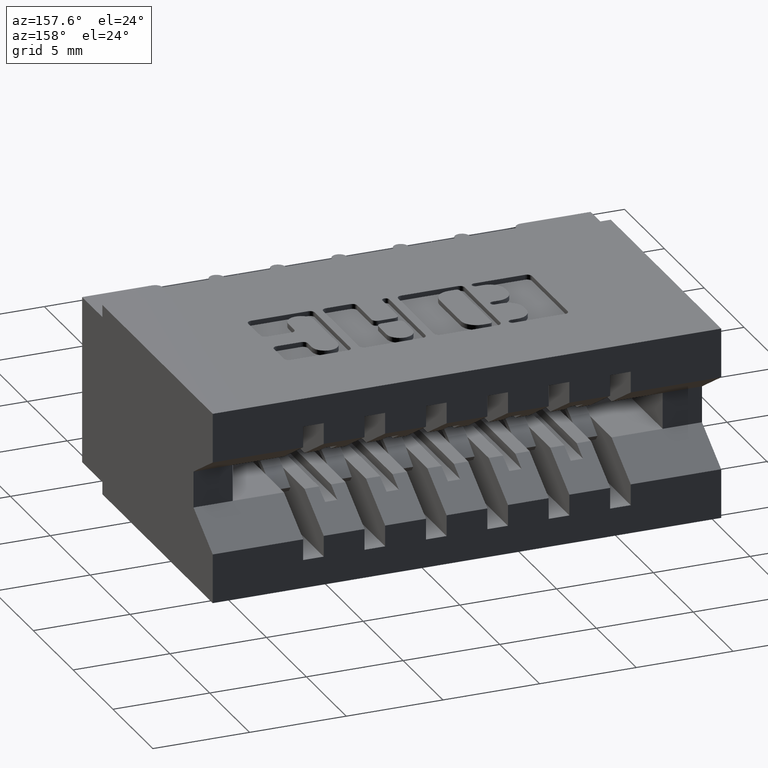
[diagram: clean part render]
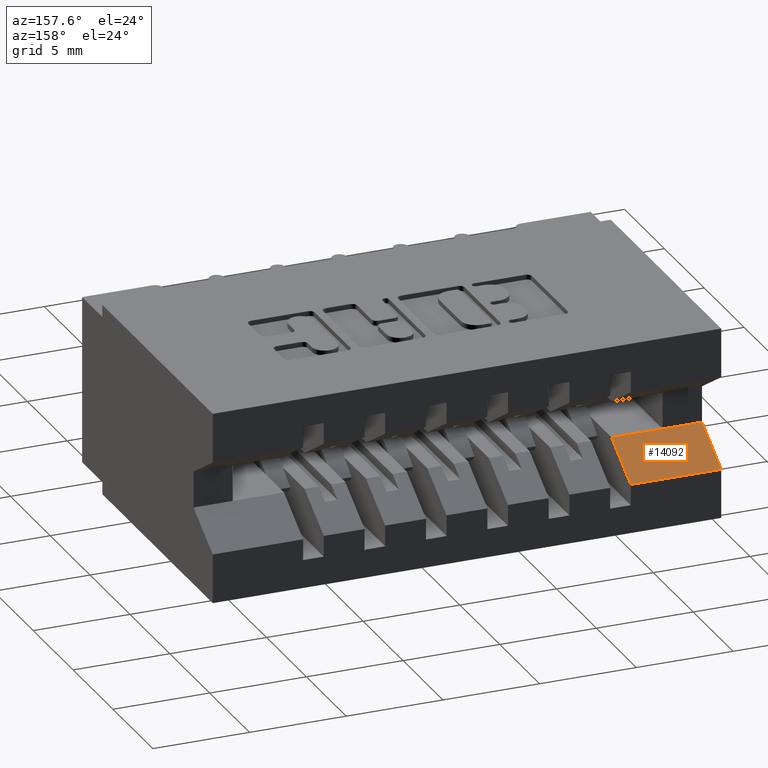
[diagram: same view with one face highlighted and labeled with its STEP entity id]
A machine part, auxiliary view. The second image highlights one B-rep face of the part: STEP entity #14092.
In plain terms, the highlighted planar face has unit normal (0, 0.5194, 0.8545).
Its self-contained STEP definition (entity closure, byte-faithful):
#52 = LINE ( 'NONE', #4135, #9020 ) ;
#121 = EDGE_CURVE ( 'NONE', #2659, #10303, #5642, .T. ) ;
#199 = CARTESIAN_POINT ( 'NONE',  ( 0.1839999999999997193, 0.5499999999999998224, -0.2319999999999999840 ) ) ;
#415 = ORIENTED_EDGE ( 'NONE', *, *, #11297, .T. ) ;
#1369 = CARTESIAN_POINT ( 'NONE',  ( 0.07999999999999969635, 0.5499999999999999334, -0.2320000000000000395 ) ) ;
#1540 = CARTESIAN_POINT ( 'NONE',  ( 0.0000000000000000000, 0.6449999999999999067, -0.2897500000000000075 ) ) ;
#1844 = CARTESIAN_POINT ( 'NONE',  ( 0.1839999999999996638, 0.6449999999999999067, -0.2897499999999999520 ) ) ;
#2128 = EDGE_LOOP ( 'NONE', ( #6785, #6626, #415, #2349, #9155 ) ) ;
#2294 = EDGE_CURVE ( 'NONE', #2659, #3976, #13315, .T. ) ;
#2349 = ORIENTED_EDGE ( 'NONE', *, *, #6928, .F. ) ;
#2577 = AXIS2_PLACEMENT_3D ( 'NONE', #9818, #3375, #12116 ) ;
#2659 = VERTEX_POINT ( 'NONE', #13294 ) ;
#3375 = DIRECTION ( 'NONE',  ( 0.0000000000000000000, 0.5194474936862354397, 0.8545023705661023428 ) ) ;
#3976 = VERTEX_POINT ( 'NONE', #1369 ) ;
#4135 = CARTESIAN_POINT ( 'NONE',  ( 0.0000000000000000000, 0.5499999999999999334, -0.2320000000000000395 ) ) ;
#4149 = VECTOR ( 'NONE', #9017, 39.37007874015748143 ) ;
#5413 = DIRECTION ( 'NONE',  ( -1.000000000000000000, 0.0000000000000000000, 0.0000000000000000000 ) ) ;
#5439 = PLANE ( 'NONE',  #2577 ) ;
#5642 = LINE ( 'NONE', #199, #8723 ) ;
#6626 = ORIENTED_EDGE ( 'NONE', *, *, #121, .T. ) ;
#6785 = ORIENTED_EDGE ( 'NONE', *, *, #2294, .F. ) ;
#6928 = EDGE_CURVE ( 'NONE', #10327, #7165, #52, .T. ) ;
#7165 = VERTEX_POINT ( 'NONE', #1540 ) ;
#7938 = CARTESIAN_POINT ( 'NONE',  ( 1.034999999999999920, 0.6449999999999999067, -0.2897500000000000075 ) ) ;
#8473 = DIRECTION ( 'NONE',  ( -1.000000000000000000, 0.0000000000000000000, 0.0000000000000000000 ) ) ;
#8495 = VECTOR ( 'NONE', #8473, 39.37007874015748143 ) ;
#8723 = VECTOR ( 'NONE', #12989, 39.37007874015748143 ) ;
#8779 = DIRECTION ( 'NONE',  ( 0.0000000000000000000, 0.8545023705661023428, -0.5194474936862353287 ) ) ;
#9017 = DIRECTION ( 'NONE',  ( -1.000000000000000000, 0.0000000000000000000, 0.0000000000000000000 ) ) ;
#9020 = VECTOR ( 'NONE', #8779, 39.37007874015748854 ) ;
#9155 = ORIENTED_EDGE ( 'NONE', *, *, #13725, .F. ) ;
#9818 = CARTESIAN_POINT ( 'NONE',  ( 1.034999999999999920, 0.5499999999999999334, -0.2320000000000000395 ) ) ;
#9963 = FACE_OUTER_BOUND ( 'NONE', #2128, .T. ) ;
#10036 = LINE ( 'NONE', #7938, #4149 ) ;
#10303 = VERTEX_POINT ( 'NONE', #1844 ) ;
#10314 = VECTOR ( 'NONE', #5413, 39.37007874015748143 ) ;
#10327 = VERTEX_POINT ( 'NONE', #10594 ) ;
#10594 = CARTESIAN_POINT ( 'NONE',  ( 0.0000000000000000000, 0.5499999999999999334, -0.2320000000000000395 ) ) ;
#11297 = EDGE_CURVE ( 'NONE', #10303, #7165, #10036, .T. ) ;
#11876 = LINE ( 'NONE', #13961, #8495 ) ;
#12089 = CARTESIAN_POINT ( 'NONE',  ( 1.034999999999999920, 0.5499999999999999334, -0.2320000000000000395 ) ) ;
#12116 = DIRECTION ( 'NONE',  ( 0.0000000000000000000, -0.8545023705661022317, 0.5194474936862353287 ) ) ;
#12989 = DIRECTION ( 'NONE',  ( -1.238924702507070723E-16, 0.8545023705661022317, -0.5194474936862353287 ) ) ;
#13294 = CARTESIAN_POINT ( 'NONE',  ( 0.1839999999999996638, 0.5499999999999999334, -0.2320000000000000118 ) ) ;
#13315 = LINE ( 'NONE', #12089, #10314 ) ;
#13725 = EDGE_CURVE ( 'NONE', #3976, #10327, #11876, .T. ) ;
#13961 = CARTESIAN_POINT ( 'NONE',  ( 1.034999999999999920, 0.5499999999999999334, -0.2320000000000000395 ) ) ;
#14092 = ADVANCED_FACE ( 'NONE', ( #9963 ), #5439, .T. ) ;